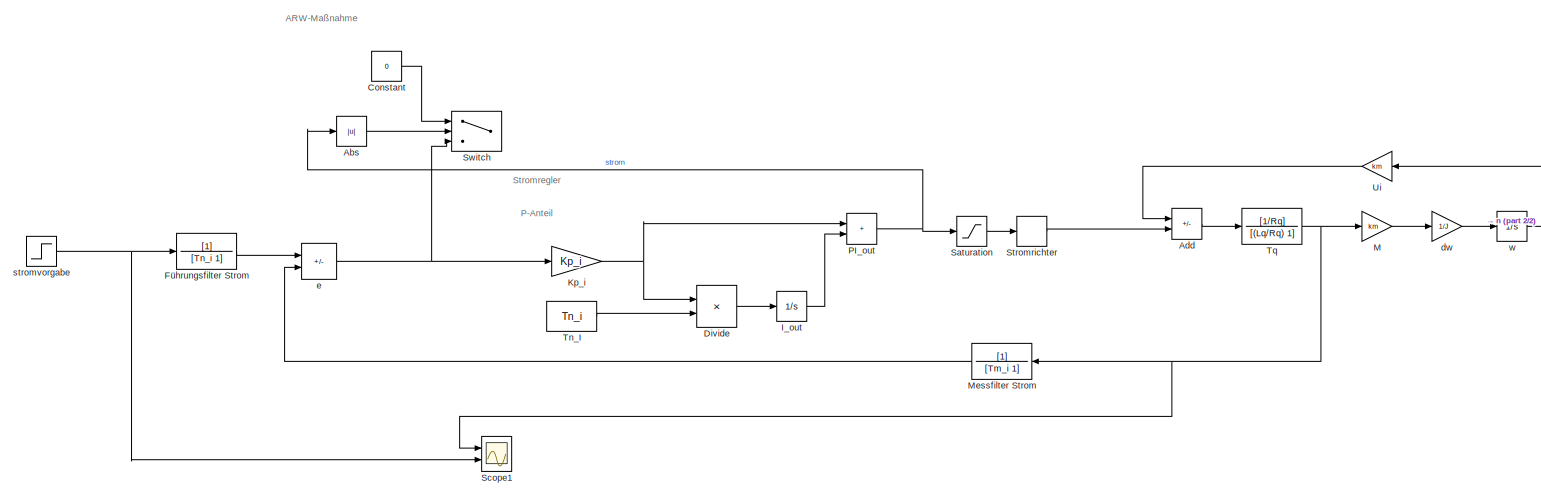
[diagram: root canvas - part 1/2, most of the canvas]
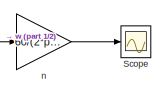
[diagram: root canvas - part 2/2, middle right region]
MODEL slx_fb415fbec4fd
KIND model
CONFIG AbsTol = auto
CONFIG EnableMultiTasking = off
CONFIG FixedStep = T_tast/100
CONFIG MaxStep = auto
CONFIG MinStep = auto
CONFIG PostLoadFcn = , if any(exist('dsrtsu_mdlpostloadfcn', 'file') == [2, 3, 6]), try dsrtsu_mdlpostloadfcn('Execute', bdroot); catch fprintf('Error in PostLoadFcn (dsrtsu_mdlpostloadfcn) for model "%s":\n %s\n', bdroot, lasterr); end, end, \n,try, xsg_acmc_mdl_postloadfcn(bdroot, 'UpdateModel', 170100); catch, disp(lasterr); end, 
CONFIG PreLoadFcn = ,try, xsg_acmc_mdl_preloadfcn(bdroot, 'LoadModel'); catch, disp(lasterr); end, 
CONFIG RelTol = 1e-9
CONFIG SampleTimeConstraint = Unconstrained
CONFIG SolverName = ode45
CONFIG StartTime = 0
CONFIG StopTime = 0.2
BLOCK [Abs] Abs
  SaturateOnIntegerOverflow = off
BLOCK [Sum] Add
  IconShape = rectangular
  Inputs = -+
  Ports = [2, 1]
BLOCK [Constant] Constant
  Value = 0
BLOCK [Product] Divide
  Inputs = */
  Ports = [2, 1]
BLOCK [TransferFcn] Führungsfilter Strom
  Denominator = [Tn_i 1]
BLOCK [Integrator] I_out
  Ports = [1, 1]
BLOCK [Gain] Kp_i
  Gain = Kp_i
BLOCK [Gain] M 
  Gain = km
BLOCK [TransferFcn] Messfilter Strom
  Denominator = [Tm_i 1]
BLOCK [Sum] PI_out
  IconShape = rectangular
  Ports = [2, 1]
BLOCK [Saturate] Saturation
  LowerLimit = -Ud
  UpperLimit = Ud
BLOCK [Scope] Scope
  Floating = off
  NumInputPorts = 1
  Ports = [1]
  ScopeSpecificationString = Simulink.scopes.TimeScopeBlockCfg('CurrentConfiguration', extmgr.ConfigurationSet(extmgr.Configuration('Core','General UI',true),extmgr.Configuration('Core','Source UI',true),extmgr.Configuration('Sources','WiredSimulink',true,'DataLoggingVariableName','ScopeData1'),extmgr.Configuration('Visuals','Time Domain',true,'SerializedDisplays',{struct('MinYLimReal','-2.65332','MaxYLimReal','23.87985','YLa...<+1364ch>
BLOCK [Scope] Scope1
  AttributesFormatString = %<ActiveDisplayString>
  Floating = off
  NumInputPorts = 2
  Ports = [2]
  ScopeSpecificationString = Simulink.scopes.TimeScopeBlockCfg('CurrentConfiguration', extmgr.ConfigurationSet(extmgr.Configuration('Core','General UI',true),extmgr.Configuration('Core','Source UI',true),extmgr.Configuration('Sources','WiredSimulink',true,'DataLoggingVariableName','ScopeData1'),extmgr.Configuration('Visuals','Time Domain',true,'SerializedDisplays',{struct('MinYLimReal','-0.31942','MaxYLimReal','2.8673','YLabe...<+1471ch>
BLOCK [TransportDelay] Stromrichter
  DelayTime = Ts/2
  Ports = [1, 1]
BLOCK [Switch] Switch
  InputSameDT = off
  SaturateOnIntegerOverflow = off
  Threshold = i_max
BLOCK [Constant] Tn_I
  Value = Tn_i
BLOCK [TransferFcn] Tq
  Denominator = [(Lq/Rq) 1]
  Numerator = [1/Rq]
BLOCK [Gain] Ui
  Gain = km
BLOCK [Gain] dw 
  Gain = 1/J
BLOCK [Sum] e
  IconShape = rectangular
  Inputs = +-
  Ports = [2, 1]
BLOCK [Gain] n
  Gain = 60/(2*pi)
BLOCK [Step] stromvorgabe
  After = i_soll
  SampleTime = 0
  Time = 0.1
BLOCK [Integrator] w
  Ports = [1, 1]
ANNOTATION (root): ARW-Maßnahme
ANNOTATION (root): P-Anteil
ANNOTATION (root): Stromregler
LINE Abs:1 -> Switch:2
LINE Add:1 -> Tq:1
LINE Constant:1 -> Switch:1
LINE Divide:1 -> I_out:1
LINE Führungsfilter Strom:1 -> e:1
LINE I_out:1 -> PI_out:2
NET Kp_i:1 -> Divide:1, PI_out:1
LINE M :1 -> dw :1
LINE Messfilter Strom:1 -> e:2
NET PI_out:1 -> Abs:1, Saturation:1
LINE Saturation:1 -> Stromrichter:1
LINE Stromrichter:1 -> Add:2
LINE Tn_I:1 -> Divide:2
NET Tq:1 -> M :1, Messfilter Strom:1, Scope1:1
LINE Ui:1 -> Add:1
LINE dw :1 -> w:1
NET e:1 -> Kp_i:1, Switch:3
LINE n:1 -> Scope:1
NET stromvorgabe:1 -> Führungsfilter Strom:1, Scope1:2
NET w:1 -> Ui:1, n:1
note: NET lines group one-source signal fan-out (src -> all destinations, sorted); 1:1 wires keep LINE
